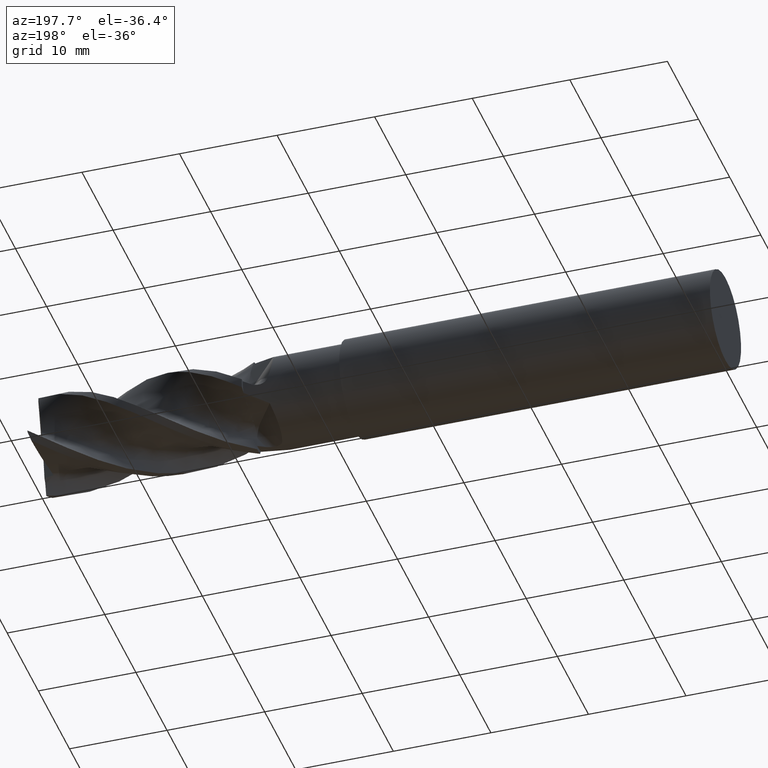
[diagram: clean part render]
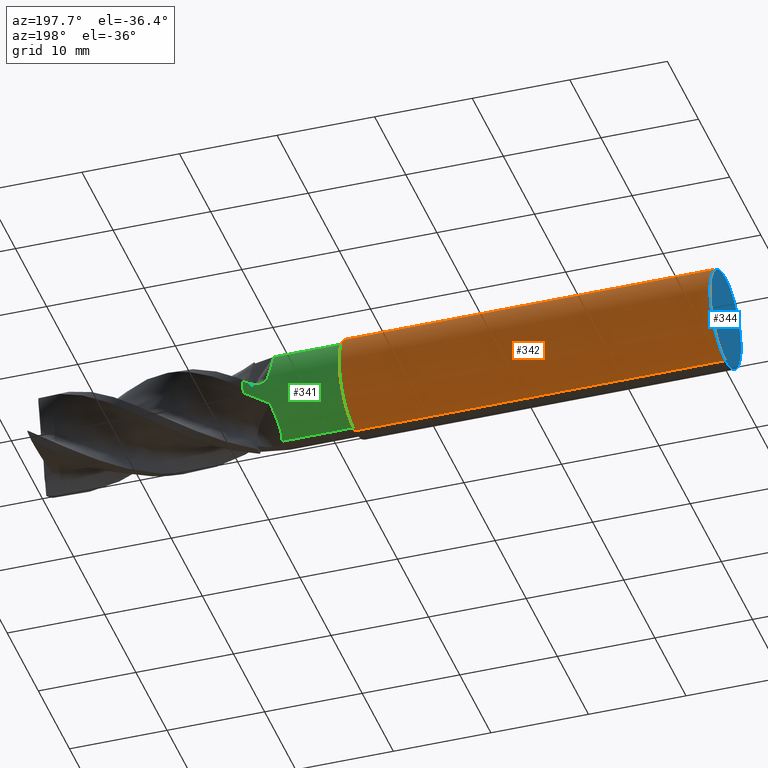
[diagram: same view with three faces highlighted in distinct colors, each labeled with its STEP entity id]
A machine part, auxiliary view with three faces highlighted in distinct colors.
Their STEP definitions:

[orange] entity #342 — the highlighted cylindrical surface (partial cylindrical patch) has radius 5 mm, axis along (-1, -0, -0).
#25 = FACE_OUTER_BOUND ( 'NONE', #510, .T. ) ;
#67 = CYLINDRICAL_SURFACE ( 'NONE', #188, 5.000000000000007100 ) ;
#188 = AXIS2_PLACEMENT_3D ( 'NONE', #5467, #5466, #5465 ) ;
#342 = ADVANCED_FACE ( 'NONE', ( #25 ), #67, .T. ) ;
#391 = EDGE_CURVE ( 'NONE', #3940, #3813, #547, .T. ) ;
#397 = EDGE_CURVE ( 'NONE', #3870, #3924, #556, .T. ) ;
#439 = EDGE_CURVE ( 'NONE', #3940, #3870, #1876, .T. ) ;
#481 = EDGE_CURVE ( 'NONE', #3813, #3924, #1896, .T. ) ;
#510 = EDGE_LOOP ( 'NONE', ( #2142, #2165, #2204, #2235 ) ) ;
#547 = LINE ( 'NONE', #3533, #560 ) ;
#556 = LINE ( 'NONE', #3552, #4387 ) ;
#560 = VECTOR ( 'NONE', #3536, 1000.000000000000000 ) ;
#1850 = AXIS2_PLACEMENT_3D ( 'NONE', #4135, #4143, #4144 ) ;
#1864 = AXIS2_PLACEMENT_3D ( 'NONE', #3761, #3772, #3773 ) ;
#1876 = CIRCLE ( 'NONE', #1864, 5.000000000000009800 ) ;
#1896 = CIRCLE ( 'NONE', #1850, 5.000000000000004400 ) ;
#2142 = ORIENTED_EDGE ( 'NONE', *, *, #439, .T. ) ;
#2165 = ORIENTED_EDGE ( 'NONE', *, *, #397, .T. ) ;
#2204 = ORIENTED_EDGE ( 'NONE', *, *, #481, .F. ) ;
#2235 = ORIENTED_EDGE ( 'NONE', *, *, #391, .F. ) ;
#3533 = CARTESIAN_POINT ( 'NONE',  ( -39.76065438357068200, 0.0000000000000000000, 5.000000000000007100 ) ) ;
#3536 = DIRECTION ( 'NONE',  ( -1.000000000000000000, -0.0000000000000000000, -0.0000000000000000000 ) ) ;
#3552 = CARTESIAN_POINT ( 'NONE',  ( -39.76065438357068200, 6.123233995736774200E-016, -5.000000000000007100 ) ) ;
#3558 = DIRECTION ( 'NONE',  ( -1.000000000000000000, -0.0000000000000000000, -0.0000000000000000000 ) ) ;
#3761 = CARTESIAN_POINT ( 'NONE',  ( -1.999999999999994900, 0.0000000000000000000, 0.0000000000000000000 ) ) ;
#3772 = DIRECTION ( 'NONE',  ( -1.000000000000000000, -0.0000000000000000000, -0.0000000000000000000 ) ) ;
#3773 = DIRECTION ( 'NONE',  ( 0.0000000000000000000, 0.0000000000000000000, 1.000000000000000000 ) ) ;
#3813 = VERTEX_POINT ( 'NONE', #4247 ) ;
#3870 = VERTEX_POINT ( 'NONE', #4227 ) ;
#3924 = VERTEX_POINT ( 'NONE', #4286 ) ;
#3940 = VERTEX_POINT ( 'NONE', #4302 ) ;
#4135 = CARTESIAN_POINT ( 'NONE',  ( -40.00000000000000000, 0.0000000000000000000, 0.0000000000000000000 ) ) ;
#4143 = DIRECTION ( 'NONE',  ( -1.000000000000000000, -0.0000000000000000000, -0.0000000000000000000 ) ) ;
#4144 = DIRECTION ( 'NONE',  ( 0.0000000000000000000, 0.0000000000000000000, 1.000000000000000000 ) ) ;
#4227 = CARTESIAN_POINT ( 'NONE',  ( -1.999999999999994900, 6.123233995736777100E-016, -5.000000000000009800 ) ) ;
#4247 = CARTESIAN_POINT ( 'NONE',  ( -40.00000000000000000, 0.0000000000000000000, 5.000000000000004400 ) ) ;
#4286 = CARTESIAN_POINT ( 'NONE',  ( -40.00000000000000000, 6.123233995736773200E-016, -5.000000000000004400 ) ) ;
#4302 = CARTESIAN_POINT ( 'NONE',  ( -1.999999999999994900, 0.0000000000000000000, 5.000000000000009800 ) ) ;
#4387 = VECTOR ( 'NONE', #3558, 1000.000000000000000 ) ;
#5465 = DIRECTION ( 'NONE',  ( 0.0000000000000000000, 0.0000000000000000000, 1.000000000000000000 ) ) ;
#5466 = DIRECTION ( 'NONE',  ( -1.000000000000000000, -0.0000000000000000000, -0.0000000000000000000 ) ) ;
#5467 = CARTESIAN_POINT ( 'NONE',  ( -39.76065438357068200, 0.0000000000000000000, 0.0000000000000000000 ) ) ;

[blue] entity #344 — the highlighted planar face has unit normal (1, 0, 0).
#344 = ADVANCED_FACE ( 'NONE', ( #562 ), #5468, .F. ) ;
#405 = EDGE_CURVE ( 'NONE', #3924, #3813, #4390, .T. ) ;
#481 = EDGE_CURVE ( 'NONE', #3813, #3924, #1896, .T. ) ;
#498 = EDGE_LOOP ( 'NONE', ( #2175, #2174 ) ) ;
#562 = FACE_OUTER_BOUND ( 'NONE', #498, .T. ) ;
#1850 = AXIS2_PLACEMENT_3D ( 'NONE', #4135, #4143, #4144 ) ;
#1855 = AXIS2_PLACEMENT_3D ( 'NONE', #3603, #3607, #3608 ) ;
#1867 = AXIS2_PLACEMENT_3D ( 'NONE', #5450, #5475, #5476 ) ;
#1896 = CIRCLE ( 'NONE', #1850, 5.000000000000004400 ) ;
#2174 = ORIENTED_EDGE ( 'NONE', *, *, #405, .T. ) ;
#2175 = ORIENTED_EDGE ( 'NONE', *, *, #481, .T. ) ;
#3603 = CARTESIAN_POINT ( 'NONE',  ( -40.00000000000000000, 0.0000000000000000000, 0.0000000000000000000 ) ) ;
#3607 = DIRECTION ( 'NONE',  ( -1.000000000000000000, -0.0000000000000000000, -0.0000000000000000000 ) ) ;
#3608 = DIRECTION ( 'NONE',  ( 0.0000000000000000000, 0.0000000000000000000, 1.000000000000000000 ) ) ;
#3813 = VERTEX_POINT ( 'NONE', #4247 ) ;
#3924 = VERTEX_POINT ( 'NONE', #4286 ) ;
#4135 = CARTESIAN_POINT ( 'NONE',  ( -40.00000000000000000, 0.0000000000000000000, 0.0000000000000000000 ) ) ;
#4143 = DIRECTION ( 'NONE',  ( -1.000000000000000000, -0.0000000000000000000, -0.0000000000000000000 ) ) ;
#4144 = DIRECTION ( 'NONE',  ( 0.0000000000000000000, 0.0000000000000000000, 1.000000000000000000 ) ) ;
#4247 = CARTESIAN_POINT ( 'NONE',  ( -40.00000000000000000, 0.0000000000000000000, 5.000000000000004400 ) ) ;
#4286 = CARTESIAN_POINT ( 'NONE',  ( -40.00000000000000000, 6.123233995736773200E-016, -5.000000000000004400 ) ) ;
#4390 = CIRCLE ( 'NONE', #1855, 5.000000000000004400 ) ;
#5450 = CARTESIAN_POINT ( 'NONE',  ( -40.00000000000000000, 5.000000000000004400, 0.0000000000000000000 ) ) ;
#5468 = PLANE ( 'NONE',  #1867 ) ;
#5475 = DIRECTION ( 'NONE',  ( 1.000000000000000000, 0.0000000000000000000, 0.0000000000000000000 ) ) ;
#5476 = DIRECTION ( 'NONE',  ( 0.0000000000000000000, 0.0000000000000000000, -1.000000000000000000 ) ) ;

[green] entity #341 — the highlighted cylindrical surface (partial cylindrical patch) has radius 4.6 mm, axis along (-1, -0, -0).
#31 = CYLINDRICAL_SURFACE ( 'NONE', #225, 4.600000000000010300 ) ;
#61 = FACE_OUTER_BOUND ( 'NONE', #6216, .T. ) ;
#225 = AXIS2_PLACEMENT_3D ( 'NONE', #5464, #5463, #5462 ) ;
#236 = B_SPLINE_CURVE_WITH_KNOTS ( 'NONE', 3,
 ( #4031, #4036, #4037, #4038, #4039, #4040, #4041, #4042, #4043, #4044, #4045, #4046, #4047, #4048, #4049, #4050 ),
 .UNSPECIFIED., .F., .F.,
 ( 4, 2, 2, 2, 2, 2, 2, 4 ),
 ( 0.0000000000000000000, 0.001154803165783935200, 0.001732204748675902300, 0.002309606331567869600, 0.002887007914459836900, 0.003464409497351803700, 0.004041811080243771000, 0.004619212663135737400 ),
 .UNSPECIFIED. ) ;
#248 = B_SPLINE_CURVE_WITH_KNOTS ( 'NONE', 3,
 ( #3678, #3683, #3684, #3685 ),
 .UNSPECIFIED., .F., .F.,
 ( 4, 4 ),
 ( 0.0000000000000000000, 0.0001394669327448974200 ),
 .UNSPECIFIED. ) ;
#256 = B_SPLINE_CURVE_WITH_KNOTS ( 'NONE', 3,
 ( #3447, #3485, #3486, #3487, #3488, #3489, #3490, #3491, #3492, #3493 ),
 .UNSPECIFIED., .F., .F.,
 ( 4, 2, 2, 2, 4 ),
 ( 5.637851296924623100E-018, 0.0005000383848470090400, 0.001000076769694012400, 0.001500115154541015800, 0.002000153539388019200 ),
 .UNSPECIFIED. ) ;
#262 = B_SPLINE_CURVE_WITH_KNOTS ( 'NONE', 3,
 ( #3378, #3382, #3383, #3384, #3385, #3386, #3387, #3388 ),
 .UNSPECIFIED., .F., .F.,
 ( 4, 2, 2, 4 ),
 ( 0.0001394669327448985800, 0.001259403365342575700, 0.002379339797940252800, 0.004619212663135605600 ),
 .UNSPECIFIED. ) ;
#263 = B_SPLINE_CURVE_WITH_KNOTS ( 'NONE', 3,
 ( #3475, #3494, #3495, #3496, #3497, #3498, #3499 ),
 .UNSPECIFIED., .F., .F.,
 ( 4, 3, 4 ),
 ( 0.0000000000000000000, 0.0004603173848408845500, 0.0009209682350427652900 ),
 .UNSPECIFIED. ) ;
#274 = B_SPLINE_CURVE_WITH_KNOTS ( 'NONE', 3,
 ( #3610, #3616, #3617, #3618 ),
 .UNSPECIFIED., .F., .F.,
 ( 4, 4 ),
 ( 0.0000000000000000000, 0.002905963386930836500 ),
 .UNSPECIFIED. ) ;
#276 = B_SPLINE_CURVE_WITH_KNOTS ( 'NONE', 3,
 ( #3592, #3604, #3605, #3606 ),
 .UNSPECIFIED., .F., .F.,
 ( 4, 4 ),
 ( 0.0000000000000000000, 0.002905963386928197100 ),
 .UNSPECIFIED. ) ;
#290 = B_SPLINE_CURVE_WITH_KNOTS ( 'NONE', 3,
 ( #3744, #3747, #3748, #3749, #3750, #3751, #3752, #3753, #3754, #3755 ),
 .UNSPECIFIED., .F., .F.,
 ( 4, 2, 2, 2, 4 ),
 ( 3.765554488623666700E-018, 0.0005000383848473915400, 0.001000076769694779200, 0.001500115154542166800, 0.002000153539389554900 ),
 .UNSPECIFIED. ) ;
#341 = ADVANCED_FACE ( 'NONE', ( #61 ), #31, .T. ) ;
#354 = B_SPLINE_CURVE_WITH_KNOTS ( 'NONE', 3,
 ( #4079, #4086, #4087, #4088, #4089, #4090, #4091 ),
 .UNSPECIFIED., .F., .F.,
 ( 4, 3, 4 ),
 ( 0.0000000000000000000, 0.0004603173848410078700, 0.0009209682350430127000 ),
 .UNSPECIFIED. ) ;
#372 = CIRCLE ( 'NONE', #1843, 4.600000000000011200 ) ;
#375 = EDGE_CURVE ( 'NONE', #3985, #3979, #262, .T. ) ;
#383 = EDGE_CURVE ( 'NONE', #3804, #3987, #256, .T. ) ;
#384 = EDGE_CURVE ( 'NONE', #3856, #3804, #263, .T. ) ;
#390 = EDGE_CURVE ( 'NONE', #3809, #3814, #543, .T. ) ;
#404 = EDGE_CURVE ( 'NONE', #3977, #3979, #276, .T. ) ;
#409 = EDGE_CURVE ( 'NONE', #3973, #3967, #274, .T. ) ;
#415 = EDGE_CURVE ( 'NONE', #3856, #3973, #372, .T. ) ;
#416 = EDGE_CURVE ( 'NONE', #3987, #3809, #248, .T. ) ;
#428 = EDGE_CURVE ( 'NONE', #3814, #3978, #4364, .T. ) ;
#434 = EDGE_CURVE ( 'NONE', #3980, #3941, #290, .T. ) ;
#453 = EDGE_CURVE ( 'NONE', #3941, #3967, #236, .T. ) ;
#456 = EDGE_CURVE ( 'NONE', #3985, #3978, #1883, .T. ) ;
#458 = EDGE_CURVE ( 'NONE', #3867, #3980, #354, .T. ) ;
#504 = EDGE_CURVE ( 'NONE', #3867, #3977, #1898, .T. ) ;
#543 = LINE ( 'NONE', #3483, #558 ) ;
#558 = VECTOR ( 'NONE', #3534, 1000.000000000000000 ) ;
#1843 = AXIS2_PLACEMENT_3D ( 'NONE', #3656, #3679, #3680 ) ;
#1845 = AXIS2_PLACEMENT_3D ( 'NONE', #3719, #3726, #3727 ) ;
#1869 = AXIS2_PLACEMENT_3D ( 'NONE', #4167, #4187, #4188 ) ;
#1883 = LINE ( 'NONE', #4077, #1885 ) ;
#1885 = VECTOR ( 'NONE', #4078, 1000.000000000000000 ) ;
#1898 = CIRCLE ( 'NONE', #1869, 4.600000000000011200 ) ;
#2128 = ORIENTED_EDGE ( 'NONE', *, *, #434, .F. ) ;
#2132 = ORIENTED_EDGE ( 'NONE', *, *, #390, .F. ) ;
#2141 = ORIENTED_EDGE ( 'NONE', *, *, #458, .F. ) ;
#2162 = ORIENTED_EDGE ( 'NONE', *, *, #416, .F. ) ;
#2163 = ORIENTED_EDGE ( 'NONE', *, *, #384, .F. ) ;
#2167 = ORIENTED_EDGE ( 'NONE', *, *, #404, .T. ) ;
#2168 = ORIENTED_EDGE ( 'NONE', *, *, #409, .T. ) ;
#2190 = ORIENTED_EDGE ( 'NONE', *, *, #504, .T. ) ;
#2192 = ORIENTED_EDGE ( 'NONE', *, *, #383, .F. ) ;
#2207 = ORIENTED_EDGE ( 'NONE', *, *, #453, .F. ) ;
#2214 = ORIENTED_EDGE ( 'NONE', *, *, #428, .F. ) ;
#2226 = ORIENTED_EDGE ( 'NONE', *, *, #456, .T. ) ;
#2248 = ORIENTED_EDGE ( 'NONE', *, *, #415, .T. ) ;
#3378 = CARTESIAN_POINT ( 'NONE',  ( 5.431449277500711000, -1.505089455844377300E-012, -4.600000000000010300 ) ) ;
#3382 = CARTESIAN_POINT ( 'NONE',  ( 5.307436425113909500, 0.3556177144230779400, -4.600000000000128400 ) ) ;
#3383 = CARTESIAN_POINT ( 'NONE',  ( 5.222661509523167200, 0.7171974708939198300, -4.559221629722455500 ) ) ;
#3384 = CARTESIAN_POINT ( 'NONE',  ( 5.121093107732344900, 1.446799906821943500, -4.382652634056882800 ) ) ;
#3385 = CARTESIAN_POINT ( 'NONE',  ( 5.106611558246249200, 1.796267669437428000, -4.251493163376384400 ) ) ;
#3386 = CARTESIAN_POINT ( 'NONE',  ( 5.150309586611117900, 2.797452735564817300, -3.728450727351723300 ) ) ;
#3387 = CARTESIAN_POINT ( 'NONE',  ( 5.295032688131899000, 3.363639944048553200, -3.220536589205889900 ) ) ;
#3388 = CARTESIAN_POINT ( 'NONE',  ( 5.510535788412889600, 3.777482627359160200, -2.624999999999940000 ) ) ;
#3447 = CARTESIAN_POINT ( 'NONE',  ( 7.212488416756828600, 0.4766979687024696700, 4.575233223195844800 ) ) ;
#3475 = CARTESIAN_POINT ( 'NONE',  ( 8.000000000000007100, -3.003476571920607700E-014, 4.605184375000007400 ) ) ;
#3483 = CARTESIAN_POINT ( 'NONE',  ( -39.76065438357068200, 0.0000000000000000000, 4.600000000000010300 ) ) ;
#3485 = CARTESIAN_POINT ( 'NONE',  ( 7.067993189817607400, 0.5638242382892154600, 4.566155453013099200 ) ) ;
#3486 = CARTESIAN_POINT ( 'NONE',  ( 6.913947203572499600, 0.6268903100594087600, 4.557251059108883100 ) ) ;
#3487 = CARTESIAN_POINT ( 'NONE',  ( 6.586193568855342100, 0.7042640303047653600, 4.545936740894475700 ) ) ;
#3488 = CARTESIAN_POINT ( 'NONE',  ( 6.419317908961608600, 0.7169834592303405700, 4.543824963346938100 ) ) ;
#3489 = CARTESIAN_POINT ( 'NONE',  ( 6.086315778266175900, 0.6769258422398144500, 4.549965052882563500 ) ) ;
#3490 = CARTESIAN_POINT ( 'NONE',  ( 5.920263181042931100, 0.6213552826364403500, 4.558864797462764100 ) ) ;
#3491 = CARTESIAN_POINT ( 'NONE',  ( 5.646495164123639800, 0.4294291651761566500, 4.580930169834673800 ) ) ;
#3492 = CARTESIAN_POINT ( 'NONE',  ( 5.539897608899319300, 0.2916718029214593300, 4.593501832972073400 ) ) ;
#3493 = CARTESIAN_POINT ( 'NONE',  ( 5.479653657439059500, 0.1325791013078299600, 4.598089035881808500 ) ) ;
#3494 = CARTESIAN_POINT ( 'NONE',  ( 7.868793384392435400, 0.07955117917555407100, 4.599999999999984500 ) ) ;
#3495 = CARTESIAN_POINT ( 'NONE',  ( 7.737590184320589000, 0.1591347650812940100, 4.597935103368223900 ) ) ;
#3496 = CARTESIAN_POINT ( 'NONE',  ( 7.606393851123891100, 0.2385957955033278200, 4.593808011483306900 ) ) ;
#3497 = CARTESIAN_POINT ( 'NONE',  ( 7.475102490557657300, 0.3181143806795054800, 4.589677930287057200 ) ) ;
#3498 = CARTESIAN_POINT ( 'NONE',  ( 7.343794155087697300, 0.3975244961901817100, 4.583482383769845300 ) ) ;
#3499 = CARTESIAN_POINT ( 'NONE',  ( 7.212488416756828600, 0.4766979687024696700, 4.575233223195844800 ) ) ;
#3534 = DIRECTION ( 'NONE',  ( -1.000000000000000000, -0.0000000000000000000, -0.0000000000000000000 ) ) ;
#3592 = CARTESIAN_POINT ( 'NONE',  ( 8.000000000000007100, 4.420909771996436500, -1.271045549143369900 ) ) ;
#3604 = CARTESIAN_POINT ( 'NONE',  ( 7.166791589799086800, 4.282543942012869000, -1.752305131243591600 ) ) ;
#3605 = CARTESIAN_POINT ( 'NONE',  ( 6.349169878981698800, 4.058028334122644400, -2.221283225341193800 ) ) ;
#3606 = CARTESIAN_POINT ( 'NONE',  ( 5.510535788412889600, 3.777482627359160200, -2.624999999999940000 ) ) ;
#3610 = CARTESIAN_POINT ( 'NONE',  ( 8.000000000000010700, 1.271045549138339900, 4.420909771997880700 ) ) ;
#3616 = CARTESIAN_POINT ( 'NONE',  ( 7.166791589797475700, 1.752305131237836400, 4.282543942015117900 ) ) ;
#3617 = CARTESIAN_POINT ( 'NONE',  ( 6.349169878984649400, 2.221283225343727800, 4.058028334120877800 ) ) ;
#3618 = CARTESIAN_POINT ( 'NONE',  ( 5.510535788412891400, 2.624999999999900100, 3.777482627359185900 ) ) ;
#3656 = CARTESIAN_POINT ( 'NONE',  ( 8.000000000000007100, 0.0000000000000000000, 0.0000000000000000000 ) ) ;
#3678 = CARTESIAN_POINT ( 'NONE',  ( 5.479653657439059500, 0.1325791013078299600, 4.598089035881808500 ) ) ;
#3679 = DIRECTION ( 'NONE',  ( -1.000000000000000000, -0.0000000000000000000, -0.0000000000000000000 ) ) ;
#3680 = DIRECTION ( 'NONE',  ( 0.0000000000000000000, 0.0000000000000000000, 1.000000000000000000 ) ) ;
#3683 = CARTESIAN_POINT ( 'NONE',  ( 5.462954686791660700, 0.08848032806910743900, 4.599360558829519400 ) ) ;
#3684 = CARTESIAN_POINT ( 'NONE',  ( 5.446892736289901100, 0.04428547051299590300, 4.599999999999995200 ) ) ;
#3685 = CARTESIAN_POINT ( 'NONE',  ( 5.431449277500712800, 1.505916160000897500E-012, 4.600000000000008500 ) ) ;
#3719 = CARTESIAN_POINT ( 'NONE',  ( -1.999999999999994900, 0.0000000000000000000, 0.0000000000000000000 ) ) ;
#3726 = DIRECTION ( 'NONE',  ( -1.000000000000000000, -0.0000000000000000000, -0.0000000000000000000 ) ) ;
#3727 = DIRECTION ( 'NONE',  ( 0.0000000000000000000, 0.0000000000000000000, 1.000000000000000000 ) ) ;
#3744 = CARTESIAN_POINT ( 'NONE',  ( 7.212488416756996500, 4.575233223195859900, -0.4766979687023310000 ) ) ;
#3747 = CARTESIAN_POINT ( 'NONE',  ( 7.067993189817770800, 4.566155453013117000, -0.5638242382890723500 ) ) ;
#3748 = CARTESIAN_POINT ( 'NONE',  ( 6.913947203572554700, 4.557251059108896400, -0.6268903100593112800 ) ) ;
#3749 = CARTESIAN_POINT ( 'NONE',  ( 6.586193568854914900, 4.545936740894476600, -0.7042640303047687000 ) ) ;
#3750 = CARTESIAN_POINT ( 'NONE',  ( 6.419317908961742700, 4.543824963346933600, -0.7169834592303706600 ) ) ;
#3751 = CARTESIAN_POINT ( 'NONE',  ( 6.086315778265754900, 4.549965052882568800, -0.6769258422397774800 ) ) ;
#3752 = CARTESIAN_POINT ( 'NONE',  ( 5.920263181042676200, 4.558864797462782700, -0.6213552826363031300 ) ) ;
#3753 = CARTESIAN_POINT ( 'NONE',  ( 5.646495164123845000, 4.580930169834674700, -0.4294291651761341600 ) ) ;
#3754 = CARTESIAN_POINT ( 'NONE',  ( 5.539897608899470200, 4.593501832972094700, -0.2916718029211912700 ) ) ;
#3755 = CARTESIAN_POINT ( 'NONE',  ( 5.479653657438771800, 4.598089035881804100, -0.1325791013080168100 ) ) ;
#3804 = VERTEX_POINT ( 'NONE', #4244 ) ;
#3809 = VERTEX_POINT ( 'NONE', #4246 ) ;
#3814 = VERTEX_POINT ( 'NONE', #4242 ) ;
#3856 = VERTEX_POINT ( 'NONE', #4260 ) ;
#3867 = VERTEX_POINT ( 'NONE', #4263 ) ;
#3941 = VERTEX_POINT ( 'NONE', #4303 ) ;
#3967 = VERTEX_POINT ( 'NONE', #4326 ) ;
#3973 = VERTEX_POINT ( 'NONE', #4332 ) ;
#3977 = VERTEX_POINT ( 'NONE', #4335 ) ;
#3978 = VERTEX_POINT ( 'NONE', #4336 ) ;
#3979 = VERTEX_POINT ( 'NONE', #4337 ) ;
#3980 = VERTEX_POINT ( 'NONE', #4338 ) ;
#3985 = VERTEX_POINT ( 'NONE', #4340 ) ;
#3987 = VERTEX_POINT ( 'NONE', #4342 ) ;
#4031 = CARTESIAN_POINT ( 'NONE',  ( 5.479653657438771800, 4.598089035881804100, -0.1325791013080168100 ) ) ;
#4036 = CARTESIAN_POINT ( 'NONE',  ( 5.341384149467074800, 4.608617400537793800, 0.2325641046188358400 ) ) ;
#4037 = CARTESIAN_POINT ( 'NONE',  ( 5.246090279077436400, 4.576330077552102100, 0.6041714904933182000 ) ) ;
#4038 = CARTESIAN_POINT ( 'NONE',  ( 5.157486303599147200, 4.453487895098454900, 1.167647468361003900 ) ) ;
#4039 = CARTESIAN_POINT ( 'NONE',  ( 5.137592436609241800, 4.400298793423898400, 1.354395617962379300 ) ) ;
#4040 = CARTESIAN_POINT ( 'NONE',  ( 5.115560468049396900, 4.271830994394234100, 1.717112959795100500 ) ) ;
#4041 = CARTESIAN_POINT ( 'NONE',  ( 5.113217325111961000, 4.196286642704024800, 1.894391317715630400 ) ) ;
#4042 = CARTESIAN_POINT ( 'NONE',  ( 5.124391889562681400, 4.022122344577791600, 2.240551694922616300 ) ) ;
#4043 = CARTESIAN_POINT ( 'NONE',  ( 5.138071781638347000, 3.923266805072078300, 2.409328542010890800 ) ) ;
#4044 = CARTESIAN_POINT ( 'NONE',  ( 5.179075577397867400, 3.708774727442353500, 2.727980291023689700 ) ) ;
#4045 = CARTESIAN_POINT ( 'NONE',  ( 5.206418331807269900, 3.592470438875007100, 2.879312246511435800 ) ) ;
#4046 = CARTESIAN_POINT ( 'NONE',  ( 5.273652374299924600, 3.342121847245946900, 3.166465604623370600 ) ) ;
#4047 = CARTESIAN_POINT ( 'NONE',  ( 5.313806354183529200, 3.207356610815937300, 3.302808407504603600 ) ) ;
#4048 = CARTESIAN_POINT ( 'NONE',  ( 5.404429440297714200, 2.925766841760574400, 3.554654440769475800 ) ) ;
#4049 = CARTESIAN_POINT ( 'NONE',  ( 5.454982710756621800, 2.778519324520871200, 3.670800938355845300 ) ) ;
#4050 = CARTESIAN_POINT ( 'NONE',  ( 5.510535788412891400, 2.624999999999900100, 3.777482627359185900 ) ) ;
#4077 = CARTESIAN_POINT ( 'NONE',  ( -39.76065438357068200, 5.633375276077836900E-016, -4.600000000000010300 ) ) ;
#4078 = DIRECTION ( 'NONE',  ( -1.000000000000000000, -0.0000000000000000000, -0.0000000000000000000 ) ) ;
#4079 = CARTESIAN_POINT ( 'NONE',  ( 8.000000000000007100, 4.605184375000007400, 7.858962058560387700E-014 ) ) ;
#4086 = CARTESIAN_POINT ( 'NONE',  ( 7.868793384392407800, 4.600000000000412600, -0.07955117917471286900 ) ) ;
#4087 = CARTESIAN_POINT ( 'NONE',  ( 7.737590184320890100, 4.597935103368233600, -0.1591347650810648600 ) ) ;
#4088 = CARTESIAN_POINT ( 'NONE',  ( 7.606393851124158400, 4.593808011483319300, -0.2385957955031219000 ) ) ;
#4089 = CARTESIAN_POINT ( 'NONE',  ( 7.475102490557890900, 4.589677930287071400, -0.3181143806793220700 ) ) ;
#4090 = CARTESIAN_POINT ( 'NONE',  ( 7.343794155087898900, 4.583482383769864800, -0.3975244961900223900 ) ) ;
#4091 = CARTESIAN_POINT ( 'NONE',  ( 7.212488416756996500, 4.575233223195859900, -0.4766979687023310000 ) ) ;
#4167 = CARTESIAN_POINT ( 'NONE',  ( 8.000000000000007100, 0.0000000000000000000, 0.0000000000000000000 ) ) ;
#4187 = DIRECTION ( 'NONE',  ( -1.000000000000000000, -0.0000000000000000000, -0.0000000000000000000 ) ) ;
#4188 = DIRECTION ( 'NONE',  ( 0.0000000000000000000, 0.0000000000000000000, 1.000000000000000000 ) ) ;
#4242 = CARTESIAN_POINT ( 'NONE',  ( -1.999999999999994900, 0.0000000000000000000, 4.600000000000010300 ) ) ;
#4244 = CARTESIAN_POINT ( 'NONE',  ( 7.212488416756828600, 0.4766979687024696700, 4.575233223195844800 ) ) ;
#4246 = CARTESIAN_POINT ( 'NONE',  ( 5.431449277500712800, 1.505916160000897500E-012, 4.600000000000008500 ) ) ;
#4260 = CARTESIAN_POINT ( 'NONE',  ( 8.000000000000007100, -3.003476571920607700E-014, 4.605184375000007400 ) ) ;
#4263 = CARTESIAN_POINT ( 'NONE',  ( 8.000000000000007100, 4.605184375000007400, 7.858962058560387700E-014 ) ) ;
#4303 = CARTESIAN_POINT ( 'NONE',  ( 5.479653657438771800, 4.598089035881804100, -0.1325791013080168100 ) ) ;
#4326 = CARTESIAN_POINT ( 'NONE',  ( 5.510535788412891400, 2.624999999999900100, 3.777482627359185900 ) ) ;
#4332 = CARTESIAN_POINT ( 'NONE',  ( 8.000000000000010700, 1.271045549138339900, 4.420909771997880700 ) ) ;
#4335 = CARTESIAN_POINT ( 'NONE',  ( 8.000000000000007100, 4.420909771996436500, -1.271045549143369900 ) ) ;
#4336 = CARTESIAN_POINT ( 'NONE',  ( -1.999999999999994900, 5.633375276077836900E-016, -4.600000000000010300 ) ) ;
#4337 = CARTESIAN_POINT ( 'NONE',  ( 5.510535788412889600, 3.777482627359160200, -2.624999999999940000 ) ) ;
#4338 = CARTESIAN_POINT ( 'NONE',  ( 7.212488416756996500, 4.575233223195859900, -0.4766979687023310000 ) ) ;
#4340 = CARTESIAN_POINT ( 'NONE',  ( 5.431449277500711000, -1.505089455844377300E-012, -4.600000000000010300 ) ) ;
#4342 = CARTESIAN_POINT ( 'NONE',  ( 5.479653657439059500, 0.1325791013078299600, 4.598089035881808500 ) ) ;
#4364 = CIRCLE ( 'NONE', #1845, 4.600000000000010300 ) ;
#5462 = DIRECTION ( 'NONE',  ( 0.0000000000000000000, 0.0000000000000000000, 1.000000000000000000 ) ) ;
#5463 = DIRECTION ( 'NONE',  ( -1.000000000000000000, -0.0000000000000000000, -0.0000000000000000000 ) ) ;
#5464 = CARTESIAN_POINT ( 'NONE',  ( -39.76065438357068200, 0.0000000000000000000, 0.0000000000000000000 ) ) ;
#6216 = EDGE_LOOP ( 'NONE', ( #6222, #2226, #2214, #2132, #2162, #2192, #2163, #2248, #2168, #2207, #2128, #2141, #2190, #2167 ) ) ;
#6222 = ORIENTED_EDGE ( 'NONE', *, *, #375, .F. ) ;